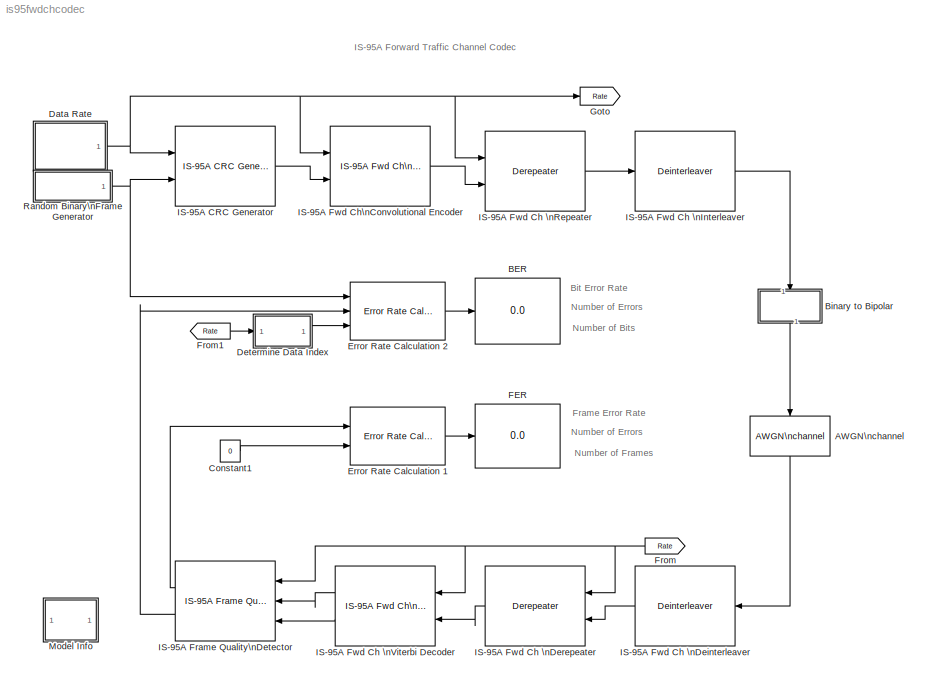
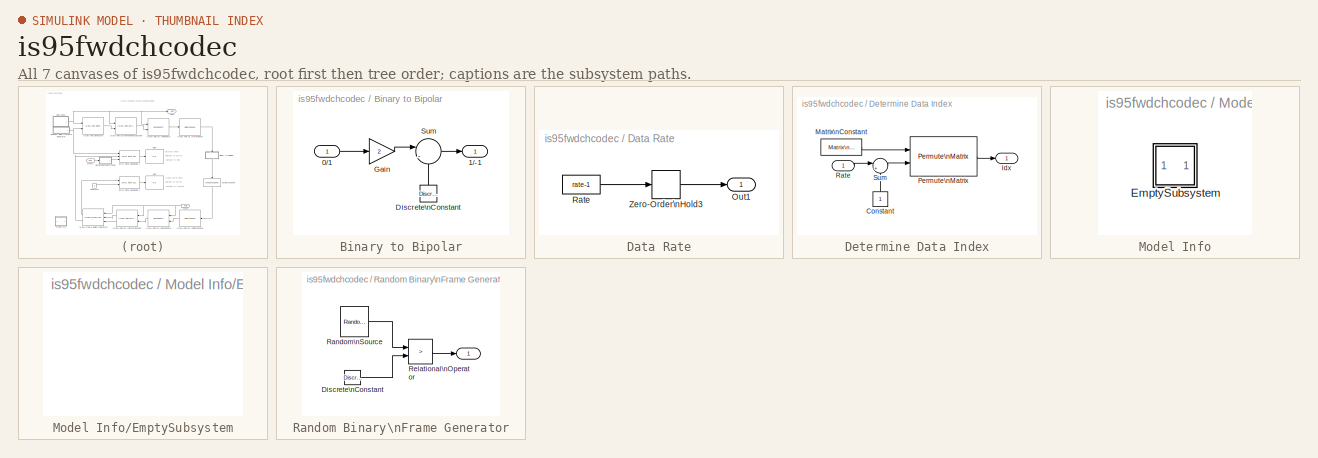
[diagram: thumbnail index - all 7 canvases of the model, root first then tree order]
MODEL is95fwdchcodec
KIND model
CONFIG AbsTol = 1e-6
CONFIG FixedStep = auto
CONFIG MaxStep = auto
CONFIG MinStep = auto
CONFIG RelTol = 1e-3
CONFIG Solver = VariableStepDiscrete
CONFIG SolverMode = SingleTasking
CONFIG StartTime = 0.0
CONFIG StopTime = 20.0
BLOCK [Reference] AWGN\nchannel  REF=commchan/AWGN\nchannel
  EsNodB = -1
  FrameBased = on
  Ports = [1, 1]
  Ps = 1
  SNRdB = 2
  SourceBlock = commchan/AWGN\nchannel
  SourceType = AWGN Channel
  Tsym = 1/(50*384)
  nChans = 1
  noiseMode = Signal to noise ratio  (SNR)
  seed = 11243
  variance = 1
BLOCK [Display] BER
  Decimation = 1
  Floating = off
  Format = short
  Ports = [1]
  SampleTime = -1
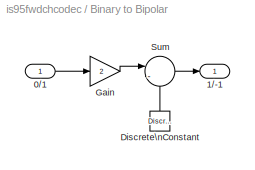
BLOCK [SubSystem] Binary to Bipolar
  MaskDescription = Binary to Bipolar Transformation.
  MaskDisplay = disp('0/1->1/-1')
  MaskIconFrame = on
  MaskIconOpaque = on
  MaskIconRotate = none
  MaskIconUnits = autoscale
  MaskType = Binary to Bipolar Transformation
  Ports = [1, 1]
  RTWFcnNameOpts = Auto
  RTWFileNameOpts = Auto
  RTWSystemCode = Auto
  ShowPortLabels = on
  TreatAsAtomicUnit = off
BLOCK [Inport] Binary to Bipolar/0//1
  Interpolate = on
  Port = 1
BLOCK [Outport] Binary to Bipolar/1//-1
  InitialOutput = 0
  OutputWhenDisabled = held
  Port = 1
BLOCK [Reference] Binary to Bipolar/Discrete\nConstant  REF=dspsrcs2/Discrete\nConstant
  Ports = [0, 1]
  SourceBlock = dspsrcs2/Discrete\nConstant
  SourceType = Discrete Constant
  Ts = 1/50
  Value = 1
BLOCK [Gain] Binary to Bipolar/Gain
  Gain = 2
  Multiplication = Element-wise(K.*u)
  SaturateOnIntegerOverflow = on
BLOCK [Sum] Binary to Bipolar/Sum
  IconShape = round
  Inputs = |-+
  Ports = [2, 1]
  SaturateOnIntegerOverflow = on
BLOCK [Constant] Constant1
  Value = 0
  VectorParams1D = on
BLOCK [SubSystem] Data Rate
  MaskDisplay = disp('Base Station \\nTransmitter\\nData Rate')
  MaskEnableString = on
  MaskIconFrame = on
  MaskIconOpaque = on
  MaskIconRotate = none
  MaskIconUnits = autoscale
  MaskPromptString = Data Rate
  MaskStyleString = popup(Full|Half|Quarter|One-Eighth)
  MaskToolTipString = on
  MaskTunableValueString = on
  MaskValueString = Full
  MaskVariables = rate=@1;
  MaskVisibilityString = on
  Ports = [0, 1]
  RTWFcnNameOpts = Auto
  RTWFileNameOpts = Auto
  RTWSystemCode = Auto
  ShowPortLabels = on
  TreatAsAtomicUnit = off
BLOCK [Outport] Data Rate/Out1
  InitialOutput = 0
  OutputWhenDisabled = held
  Port = 1
BLOCK [Constant] Data Rate/Rate
  Value = rate-1
  VectorParams1D = on
BLOCK [ZeroOrderHold] Data Rate/Zero-Order\nHold3
  SampleTime = 1/50
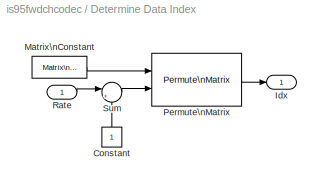
BLOCK [SubSystem] Determine Data Index
  MaskDescription = Deterime index of valid data in the frame based upon rate set and rate input.
  MaskEnableString = on
  MaskIconFrame = on
  MaskIconOpaque = on
  MaskIconRotate = none
  MaskIconUnits = autoscale
  MaskInitialization = if(rateSet==1)\n% --- Rate Set 1\n   R1F = buffer(1:172,268);\n   R1H = buffer(1:80,268);\n   R1Q = buffer(1:40,268);\n   R1E = buffer(1:16,268);\n   idxMat = [R1F R1H R1Q R1E];\nelse\n   % --- Rate Set 2\n   R2F = [1:268]';\n   R2H = buffer(1:126,268);\n   R2Q = buffer(1:56,268);\n   R2E = buffer(1:22,268);\n   idxMat = [R2F R2H R2Q R2E];\nend;\n
  MaskPromptString = Rate set:
  MaskStyleString = popup(Rate Set I|Rate Set II)
  MaskToolTipString = on
  MaskTunableValueString = on
  MaskType = Determine Data Index
  MaskValueString = Rate Set I
  MaskVariables = rateSet=@1;
  MaskVisibilityString = on
  Ports = [1, 1]
  RTWFcnNameOpts = Auto
  RTWFileNameOpts = Auto
  RTWSystemCode = Auto
  ShowPortLabels = on
  TreatAsAtomicUnit = off
BLOCK [Constant] Determine Data Index/Constant
  Value = 1
  VectorParams1D = on
BLOCK [Outport] Determine Data Index/Idx
  InitialOutput = []
  OutputWhenDisabled = held
  Port = 1
BLOCK [Reference] Determine Data Index/Matrix\nConstant  REF=dspmtrx2/Matrix\nConstant
  M = idxMat
  Ports = [0, 1]
  SourceBlock = dspmtrx2/Matrix\nConstant
  SourceType = Matrix Constant
BLOCK [Reference] Determine Data Index/Permute\nMatrix  REF=dspmtrx2/Permute\nMatrix
  Ports = [2, 1]
  SourceBlock = dspmtrx2/Permute\nMatrix
  SourceType = Permute Matrix
  cols = 4
  errmode = Clip Index
  mode = Columns
BLOCK [Inport] Determine Data Index/Rate
  Interpolate = on
  Port = 1
BLOCK [Sum] Determine Data Index/Sum
  IconShape = round
  Inputs = |++
  Ports = [2, 1]
  SaturateOnIntegerOverflow = on
BLOCK [Reference] Error Rate Calculation 1  REF=commsink/Error Rate Calculation
  N = 0
  PMode = Port
  Ports = [2, 1]
  RsMode2 = off
  SourceBlock = commsink/Error Rate Calculation
  SourceType = Error Rate Calculation
  WsName = ErrorVec
  cp_mode = Entire frame
  st_delay = 4
  subframe = []
BLOCK [Reference] Error Rate Calculation 2  REF=commsink/Error Rate Calculation
  N = 0
  PMode = Port
  Ports = [3, 1]
  RsMode2 = off
  SourceBlock = commsink/Error Rate Calculation
  SourceType = Error Rate Calculation
  WsName = ErrorVec
  cp_mode = Select samples from port
  st_delay = 4*268
  subframe = []
BLOCK [Display] FER
  Decimation = 1
  Floating = off
  Format = short
  Ports = [1]
  SampleTime = -1
BLOCK [From] From
  CloseFcn = tagdialog Close
  GotoTag = Rate
BLOCK [From] From1
  CloseFcn = tagdialog Close
  GotoTag = Rate
BLOCK [Goto] Goto
  GotoTag = Rate
  TagVisibility = local
BLOCK [Reference] IS-95A CRC Generator  REF=cdmalib/IS-95A Common/IS-95A CRC Generator  (lib defined in mdl_250e8a714707)
  Ports = [2, 1]
  SourceBlock = cdmalib/IS-95A Common/IS-95A CRC Generator
  SourceType = IS-95A CRC Generator
  ch_type = Traffic
  rate_set = Rate Set I
BLOCK [Reference] IS-95A Frame Quality\nDetector  REF=cdmalib/IS-95A Common/IS-95A Frame Quality \nDetector  (lib defined in mdl_250e8a714707)
  Ports = [3, 2]
  SourceBlock = cdmalib/IS-95A Common/IS-95A Frame Quality \nDetector
  SourceType = IS-95A Frame Quality Detector
  chType = Traffic
  rate2_metric = 0.9*1.5
  rate3_metric = 0.85*1.5
  rateSet = Rate Set I
BLOCK [Reference] IS-95A Fwd Ch \nDeinterleaver  REF=cdmalib/IS-95A Base Station Transmitter/IS-95A Fwd Ch\nInterleaver//Deinterleaver  (lib defined in mdl_250e8a714707)
  Ports = [1, 1]
  SourceBlock = cdmalib/IS-95A Base Station Transmitter/IS-95A Fwd Ch\nInterleaver//Deinterleaver
  SourceType = IS-95A Fwd Ch Interleaver/Deinterleaver
  ch_type = Traffic
  int_select = Deinterleaver
BLOCK [Reference] IS-95A Fwd Ch \nDerepeater  REF=cdmalib/IS-95A Base Station Transmitter/IS-95A Fwd Ch\nRepeater//Derepeater  (lib defined in mdl_250e8a714707)
  Ports = [2, 1]
  SourceBlock = cdmalib/IS-95A Base Station Transmitter/IS-95A Fwd Ch\nRepeater//Derepeater
  SourceType = IS-95A Fwd Ch Repeater/Derepeater
  ch_type = Traffic
  rate_set = Rate Set I
  rep_select = Derepeater
BLOCK [Reference] IS-95A Fwd Ch \nInterleaver  REF=cdmalib/IS-95A Base Station Transmitter/IS-95A Fwd Ch\nInterleaver//Deinterleaver  (lib defined in mdl_250e8a714707)
  Ports = [1, 1]
  SourceBlock = cdmalib/IS-95A Base Station Transmitter/IS-95A Fwd Ch\nInterleaver//Deinterleaver
  SourceType = IS-95A Fwd Ch Interleaver/Deinterleaver
  ch_type = Traffic
  int_select = Interleaver
BLOCK [Reference] IS-95A Fwd Ch \nRepeater  REF=cdmalib/IS-95A Base Station Transmitter/IS-95A Fwd Ch\nRepeater//Derepeater  (lib defined in mdl_250e8a714707)
  Ports = [2, 1]
  SourceBlock = cdmalib/IS-95A Base Station Transmitter/IS-95A Fwd Ch\nRepeater//Derepeater
  SourceType = IS-95A Fwd Ch Repeater/Derepeater
  ch_type = Traffic
  rate_set = Rate Set I
  rep_select = Repeater
BLOCK [Reference] IS-95A Fwd Ch \nViterbi Decoder  REF=cdmalib/IS-95A Mobile Station Receiver/IS-95A Fwd Ch\nViterbi Decoder  (lib defined in mdl_250e8a714707)
  Ports = [2, 2]
  SourceBlock = cdmalib/IS-95A Mobile Station Receiver/IS-95A Fwd Ch\nViterbi Decoder
  SourceType = IS-95A Fwd Ch Viterbi Decoder
  chType = Traffic
  decodeLenRatio = 1
  rateSet = Rate Set I
  traceBackLenRatio = 1
BLOCK [Reference] IS-95A Fwd Ch\nConvolutional Encoder  REF=cdmalib/IS-95A Base Station Transmitter/IS-95A Fwd Ch\nConvolutional Encoder  (lib defined in mdl_250e8a714707)
  Ports = [2, 1]
  SourceBlock = cdmalib/IS-95A Base Station Transmitter/IS-95A Fwd Ch\nConvolutional Encoder
  SourceType = IS-95A Fwd Ch Convolutional Encoder
  ch_type = Traffic
  enc_state = []
  rate_set = Rate Set I
BLOCK [SubSystem] Model Info
  CopyFcn = slcm CopyBlock;
  DeleteFcn = slcm Cancel;
  InitFcn = slcm('UpdateAllCMBlocksInThisModelInit')
  LoadFcn = slcm LoadBlock;
  MaskCallbackString = ||||||||||||||||||||||||||||||
  MaskDescription = This block allows revision control information to be displayed within the model.
  MaskDisplay = text(str2num(LeftAlignmentValue), 0.5, MaskDisplayString, 'HorizontalAlignment', HorizontalTextAlignment)\n
  MaskEnableString = on,on,on,on,on,on,on,on,on,on,on,on,on,on,on,on,on,on,on,on,on,on,on,on,on,on,on,on,on,on,on
  MaskIconFrame = on
  MaskIconOpaque = on
  MaskIconRotate = none
  MaskIconUnits = normalized
  MaskPromptString = InitialSaveTempField|InitialBlockCM|BlockCM|Frame|SaveTempField|DisplayStringWithTags|MaskDisplayString|HorizontalTextAlignment|LeftAlignmentValue|SourceBlockDiagram|TagMaxNumber|CMTag1|CMTag2|CMTag3|CMTag4|CMTag5|CMTag6|CMTag7|CMTag8|CMTag9|CMTag10|CMTag11|CMTag12|CMTag13|CMTag14|CMTag15|CMTag16|CMTag17|CMTag18|CMTag19|CMTag20
  MaskSelfModifiable = on
  MaskStyleString = edit,edit,edit,edit,edit,edit,edit,edit,edit,edit,edit,edit,edit,edit,edit,edit,edit,edit,edit,edit,edit,edit,edit,edit,edit,edit,edit,edit,edit,edit,edit
  MaskToolTipString = on,on,on,on,on,on,on,on,on,on,on,on,on,on,on,on,on,on,on,on,on,on,on,on,on,on,on,on,on,on,on
  MaskTunableValueString = on,on,on,on,on,on,on,on,on,on,on,on,on,on,on,on,on,on,on,on,on,on,on,on,on,on,on,on,on,on,on
  MaskType = CMBlock
  MaskValueString = |none|none|on||Info|Info|Center|0.5|is95fwdchcodec|20||||||||||||||||||||
  MaskVariableAliases = ,,,,,,,,,,,,,,,,,,,,,,,,,,,,,,
  MaskVariables = InitialSaveTempField=&1;InitialBlockCM=&2;BlockCM=&3;Frame=&4;SaveTempField=&5;DisplayStringWithTags=&6;MaskDisplayString=&7;HorizontalTextAlignment=&8;LeftAlignmentValue=&9;SourceBlockDiagram=&10;TagMaxNumber=@11;CMTag1=&12;CMTag2=&13;CMTag3=&14;CMTag4=&15;CMTag5=&16;CMTag6=&17;CMTag7=&18;CMTag8=&19;CMTag9=&20;CMTag10=&21;CMTag11=&22;CMTag12=&23;CMTag13=&24;CMTag14=&25;CMTag15=&26;CMTag16=&27;CMT...<+45ch>
  MaskVisibilityString = off,off,off,off,off,off,off,off,off,off,off,off,off,off,off,off,off,off,off,off,off,off,off,off,off,off,off,off,off,off,off
  NameChangeFcn = slcm Rename;
  OpenFcn = cdmademohelp;
  Ports = []
  PostSaveFcn = slcm('UpdateAllCMBlocksInThisModel')
  RTWFcnNameOpts = Auto
  RTWFileNameOpts = Auto
  RTWSystemCode = Auto
  ShowPortLabels = on
  TreatAsAtomicUnit = off
BLOCK [SubSystem] Model Info/EmptySubsystem
  Ports = []
  RTWFcnNameOpts = Auto
  RTWFileNameOpts = Auto
  RTWSystemCode = Auto
  ShowPortLabels = on
  TreatAsAtomicUnit = off
BLOCK [SubSystem] Random Binary\nFrame Generator
  MaskCallbackString = ||
  MaskDescription = Generate a random frame of binary integers. The output frame period is \n(Sample time) * (Output frame size).
  MaskDisplay = plot(0,0,100,100,[95,90,90,80,80,60,60,30,30,20,20,10,10,5],[25,25,75,75,25,25,75,75,25,25,75,75,25,25]);
  MaskEnableString = on,on,on
  MaskIconFrame = on
  MaskIconOpaque = on
  MaskIconRotate = none
  MaskIconUnits = autoscale
  MaskPromptString = Initial seed:|Sample time (sec):|Output frame size:
  MaskStyleString = edit,edit,edit
  MaskToolTipString = on,on,on
  MaskTunableValueString = on,on,on
  MaskType = Random Binary Frame Generator
  MaskValueString = 119940|1/(50*268)|268
  MaskVariableAliases = ,,
  MaskVariables = seed=@1;Ts=@2;N=@3;
  MaskVisibilityString = on,on,on
  Ports = [0, 1]
  RTWFcnNameOpts = Auto
  RTWFileNameOpts = Auto
  RTWSystemCode = Auto
  ShowPortLabels = on
  TreatAsAtomicUnit = off
BLOCK [Outport] Random Binary\nFrame Generator/ 
  InitialOutput = []
  OutputWhenDisabled = held
  Port = 1
BLOCK [Reference] Random Binary\nFrame Generator/Discrete\nConstant  REF=dspsrcs2/Discrete\nConstant
  Ports = [0, 1]
  SourceBlock = dspsrcs2/Discrete\nConstant
  SourceType = Discrete Constant
  Ts = Ts*N
  Value = 0.5
BLOCK [Reference] Random Binary\nFrame Generator/Random\nSource  REF=dspsrcs2/Random\nSource
  Diagnostics = AllowInheritedTsInSrc
  Inherit = off
  Max = 1
  Mean = 0
  Min = 0
  OutComplex = Real
  Ports = [0, 1]
  SampFrame = N
  SampMode = Discrete
  SampTime = Ts
  Seed = seed
  SourceBlock = dspsrcs2/Random\nSource
  SourceType = Random Source
  SrcType = Uniform
  Var = 1
BLOCK [RelationalOperator] Random Binary\nFrame Generator/Relational\nOperator
  Operator = >
LINE AWGN\nchannel:1 -> IS-95A Fwd Ch \nDeinterleaver:1
LINE Binary to Bipolar/0//1:1 -> Binary to Bipolar/Gain:1
LINE Binary to Bipolar/Discrete\nConstant:1 -> Binary to Bipolar/Sum:2
LINE Binary to Bipolar/Gain:1 -> Binary to Bipolar/Sum:1
LINE Binary to Bipolar/Sum:1 -> Binary to Bipolar/1//-1:1
LINE Binary to Bipolar:1 -> AWGN\nchannel:1
LINE Constant1:1 -> Error Rate Calculation 1:2
LINE Data Rate/Rate:1 -> Data Rate/Zero-Order\nHold3:1
LINE Data Rate/Zero-Order\nHold3:1 -> Data Rate/Out1:1
NET Data Rate:1 -> Goto:1, IS-95A CRC Generator:1, IS-95A Fwd Ch \nRepeater:1, IS-95A Fwd Ch\nConvolutional Encoder:1
LINE Determine Data Index/Constant:1 -> Determine Data Index/Sum:2
LINE Determine Data Index/Matrix\nConstant:1 -> Determine Data Index/Permute\nMatrix:1
LINE Determine Data Index/Permute\nMatrix:1 -> Determine Data Index/Idx:1
LINE Determine Data Index/Rate:1 -> Determine Data Index/Sum:1
LINE Determine Data Index/Sum:1 -> Determine Data Index/Permute\nMatrix:2
LINE Determine Data Index:1 -> Error Rate Calculation 2:3
LINE Error Rate Calculation 1:1 -> FER:1
LINE Error Rate Calculation 2:1 -> BER:1
LINE From1:1 -> Determine Data Index:1
NET From:1 -> IS-95A Frame Quality\nDetector:1, IS-95A Fwd Ch \nDerepeater:1, IS-95A Fwd Ch \nViterbi Decoder:1
LINE IS-95A CRC Generator:1 -> IS-95A Fwd Ch\nConvolutional Encoder:2
LINE IS-95A Frame Quality\nDetector:1 -> Error Rate Calculation 1:1
LINE IS-95A Frame Quality\nDetector:2 -> Error Rate Calculation 2:2
LINE IS-95A Fwd Ch \nDeinterleaver:1 -> IS-95A Fwd Ch \nDerepeater:2
LINE IS-95A Fwd Ch \nDerepeater:1 -> IS-95A Fwd Ch \nViterbi Decoder:2
LINE IS-95A Fwd Ch \nInterleaver:1 -> Binary to Bipolar:1
LINE IS-95A Fwd Ch \nRepeater:1 -> IS-95A Fwd Ch \nInterleaver:1
LINE IS-95A Fwd Ch \nViterbi Decoder:1 -> IS-95A Frame Quality\nDetector:2
LINE IS-95A Fwd Ch \nViterbi Decoder:2 -> IS-95A Frame Quality\nDetector:3
LINE IS-95A Fwd Ch\nConvolutional Encoder:1 -> IS-95A Fwd Ch \nRepeater:2
LINE Random Binary\nFrame Generator/Discrete\nConstant:1 -> Random Binary\nFrame Generator/Relational\nOperator:2
LINE Random Binary\nFrame Generator/Random\nSource:1 -> Random Binary\nFrame Generator/Relational\nOperator:1
LINE Random Binary\nFrame Generator/Relational\nOperator:1 -> Random Binary\nFrame Generator/ :1
NET Random Binary\nFrame Generator:1 -> Error Rate Calculation 2:1, IS-95A CRC Generator:2
note: NET lines group one-source signal fan-out (src -> all destinations, sorted); 1:1 wires keep LINE
